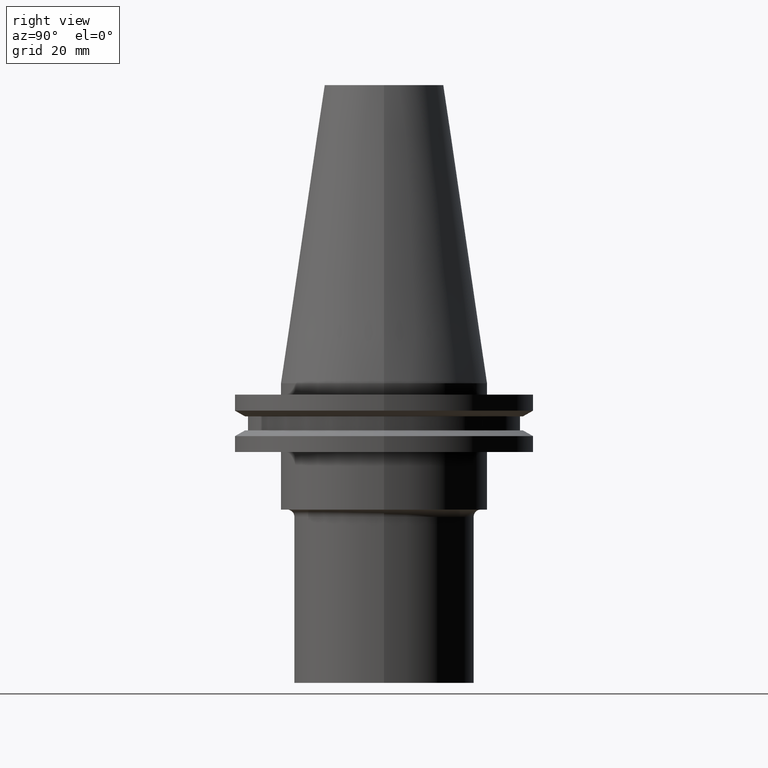
[diagram: clean part render]
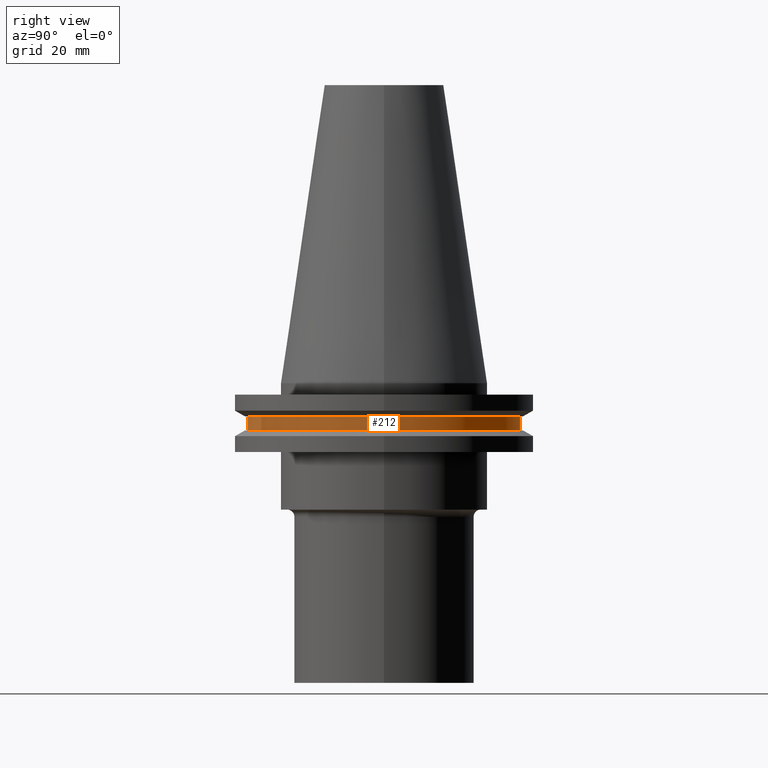
[diagram: same view with one face highlighted and labeled with its STEP entity id]
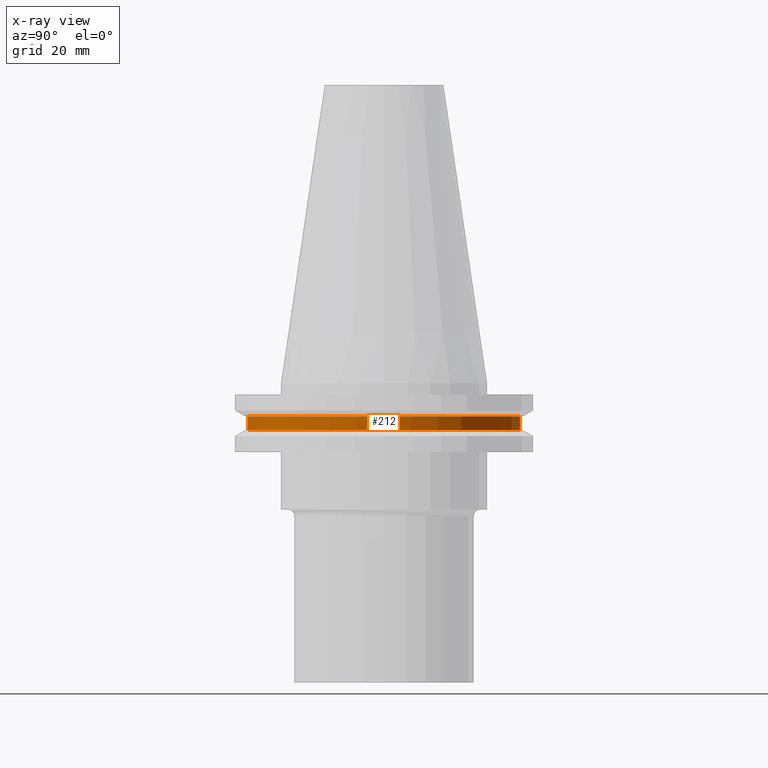
[diagram: x-ray of the same camera — body ghosted, the highlighted face saturated]
A machine part, right view. The second image highlights one B-rep face of the part: STEP entity #212.
The next image is the same camera in x-ray: the body ghosted, the highlighted face saturated — about 0% of this face is hidden behind the body in this view.
In plain terms, the highlighted cylindrical surface (bore or boss wall) has radius 37.705 mm, axis along (-0, -0, 1).
Its self-contained STEP definition (entity closure, byte-faithful):
#14 = CARTESIAN_POINT ( 'NONE',  ( 0.000000000000000000, 0.000000000000000000, -13.05499999999999794 ) ) ;
#35 = CYLINDRICAL_SURFACE ( 'NONE', #253, 37.70499999999999829 ) ;
#51 = EDGE_LOOP ( 'NONE', ( #275 ) ) ;
#102 = CIRCLE ( 'NONE', #411, 37.70499999999999829 ) ;
#112 = DIRECTION ( 'NONE',  ( 1.000000000000000000, 0.000000000000000000, 0.000000000000000000 ) ) ;
#134 = DIRECTION ( 'NONE',  ( -0.000000000000000000, -0.000000000000000000, 1.000000000000000000 ) ) ;
#139 = FACE_OUTER_BOUND ( 'NONE', #51, .T. ) ;
#147 = DIRECTION ( 'NONE',  ( -0.000000000000000000, -0.000000000000000000, 1.000000000000000000 ) ) ;
#162 = CARTESIAN_POINT ( 'NONE',  ( 0.000000000000000000, 0.000000000000000000, 82.54999999999999716 ) ) ;
#177 = AXIS2_PLACEMENT_3D ( 'NONE', #367, #340, #366 ) ;
#182 = CARTESIAN_POINT ( 'NONE',  ( 37.70499999999999829, 0.000000000000000000, -9.205000000000005400 ) ) ;
#186 = CARTESIAN_POINT ( 'NONE',  ( 37.70499999999999829, 0.000000000000000000, -13.05499999999999794 ) ) ;
#187 = EDGE_LOOP ( 'NONE', ( #341 ) ) ;
#210 = VERTEX_POINT ( 'NONE', #182 ) ;
#212 = ADVANCED_FACE ( 'NONE', ( #295, #139 ), #35, .T. ) ;
#213 = VERTEX_POINT ( 'NONE', #186 ) ;
#253 = AXIS2_PLACEMENT_3D ( 'NONE', #162, #134, #297 ) ;
#275 = ORIENTED_EDGE ( 'NONE', *, *, #375, .T. ) ;
#295 = FACE_OUTER_BOUND ( 'NONE', #187, .T. ) ;
#297 = DIRECTION ( 'NONE',  ( 1.000000000000000000, 0.000000000000000000, 0.000000000000000000 ) ) ;
#340 = DIRECTION ( 'NONE',  ( -0.000000000000000000, -0.000000000000000000, 1.000000000000000000 ) ) ;
#341 = ORIENTED_EDGE ( 'NONE', *, *, #346, .F. ) ;
#346 = EDGE_CURVE ( 'NONE', #210, #210, #350, .T. ) ;
#350 = CIRCLE ( 'NONE', #177, 37.70499999999999829 ) ;
#366 = DIRECTION ( 'NONE',  ( 1.000000000000000000, 0.000000000000000000, 0.000000000000000000 ) ) ;
#367 = CARTESIAN_POINT ( 'NONE',  ( 0.000000000000000000, 0.000000000000000000, -9.205000000000005400 ) ) ;
#375 = EDGE_CURVE ( 'NONE', #213, #213, #102, .T. ) ;
#411 = AXIS2_PLACEMENT_3D ( 'NONE', #14, #147, #112 ) ;